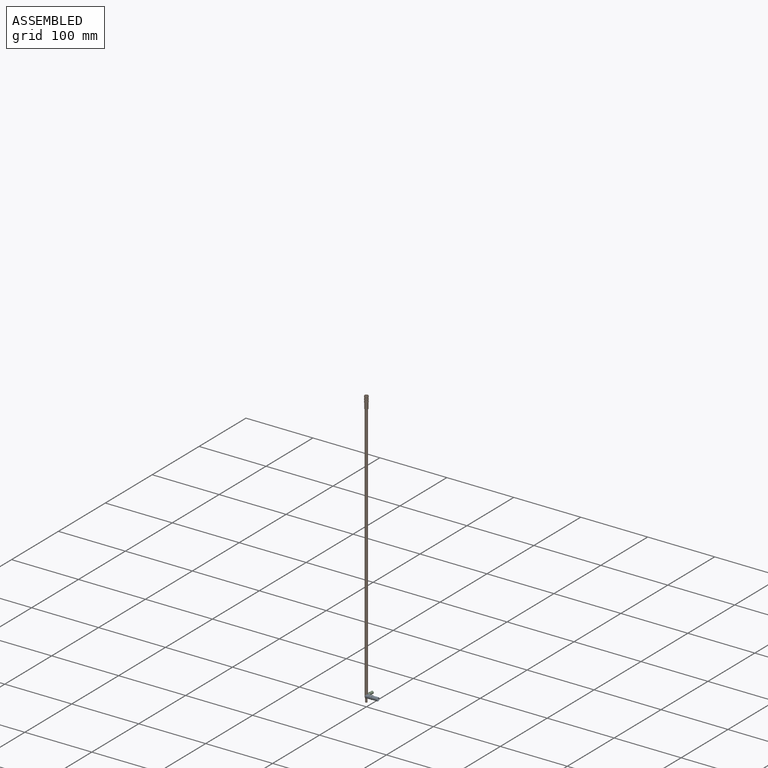
[diagram: assembled view]
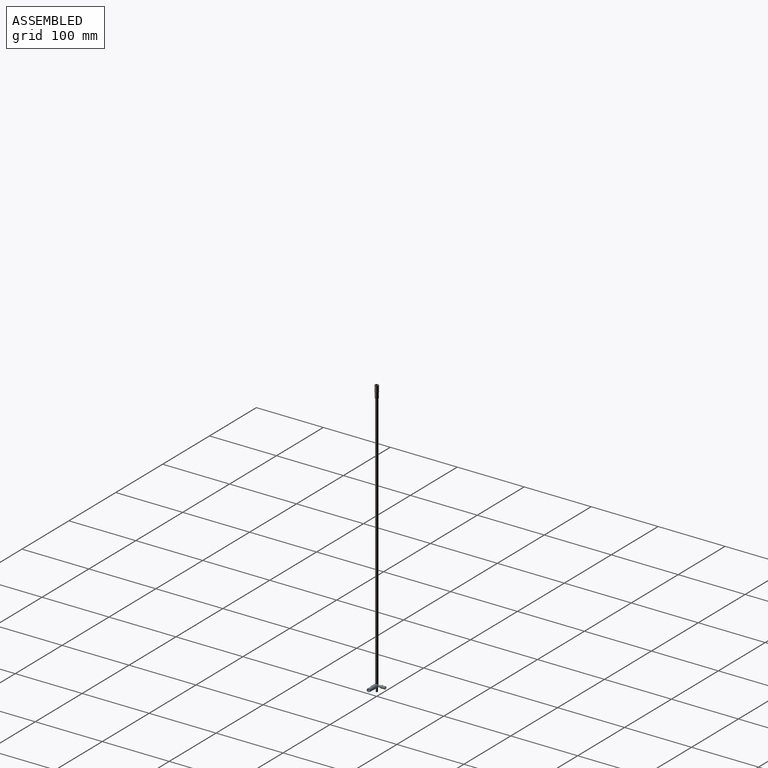
[diagram: assembled view, second angle]
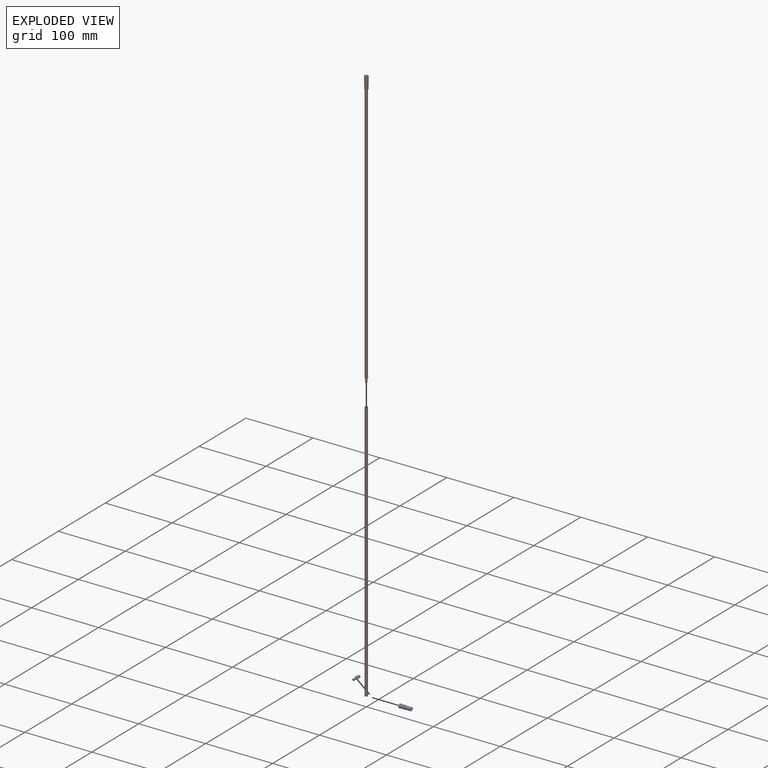
[diagram: exploded view]
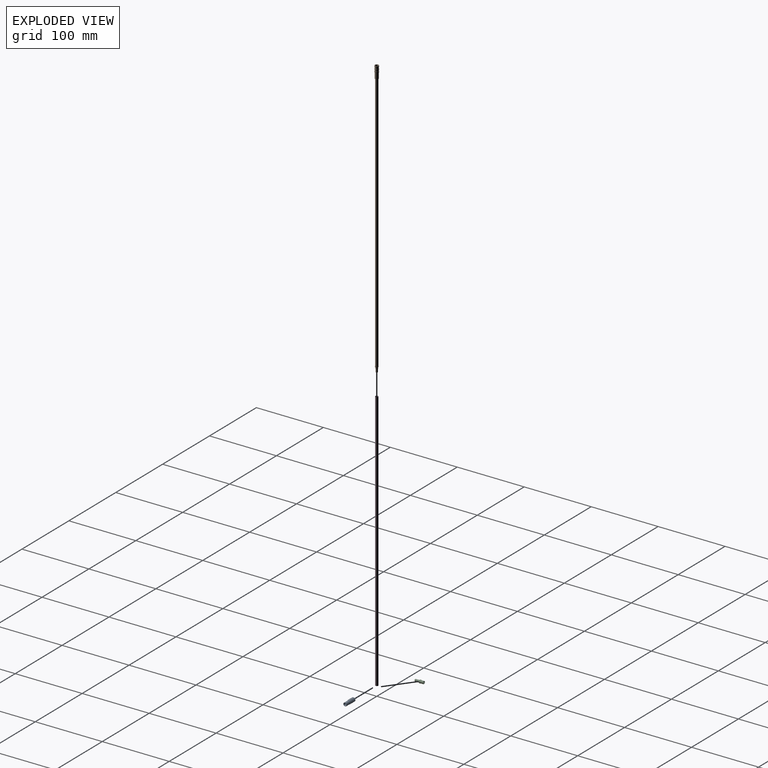
[diagram: exploded view, second angle]
FCSTD DOCUMENT  (FreeCAD 0.19R23074 (Git))
Label: StrawAssemblyTube39cm
License: All rights reserved
LicenseURL: http://en.wikipedia.org/wiki/All_rights_reserved
objects: PartDesign::CoordinateSystem×5, Sketcher::SketchObject×5, App::Part×4, App::Link×3, App::DocumentObjectGroup×2, PartDesign::Revolution×2, PartDesign::Pocket×2, Part::Chamfer×2, App::FeaturePython×1, PartDesign::Chamfer×1, Part::Cylinder×1, Part::Cut×1, PartDesign::Line×1, PartDesign::Body×1, Part::Extrusion×1
note: 27 computed .brp shape members not serialized (recipe doc carries the construction recipe); baked Part::Feature solids carry a one-line shape summary decoded from their .brp

FEATURE [PartDesign::CoordinateSystem] LCS_Origin
  AttacherType = Attacher::AttachEngine3D
  MapMode = 2
  Support = -> [X_Axis]
FEATURE [App::DocumentObjectGroup] Constraints
FEATURE [App::FeaturePython] Variables  # WARN: FeaturePython — macro-defined, semantics opaque (R4)
FEATURE [PartDesign::CoordinateSystem] LCS_0
  AttacherType = Attacher::AttachEngine3D
  MapMode = 2
  Support = -> [X_Axis001]
FEATURE [Sketcher::SketchObject] Sketch001
  MapMode = 5
  Support = -> [XY_Plane002]
  sketch-geometry (13):
    g0: LineSegment StartX=-1.39929 StartY=0 StartZ=0 EndX=0 EndY=0 EndZ=0
    g1: LineSegment StartX=0 StartY=0 StartZ=0 EndX=0 EndY=13 EndZ=0
    g2: LineSegment StartX=0 StartY=13 StartZ=0 EndX=-1.99 EndY=13 EndZ=0
    g3: LineSegment StartX=-1.99 StartY=13 StartZ=0 EndX=-1.99 EndY=8.5 EndZ=0
    g4: LineSegment StartX=-1.99 StartY=8.5 StartZ=0 EndX=-2.2 EndY=8.5 EndZ=0
    g5: LineSegment StartX=-2.2 StartY=8.5 StartZ=0 EndX=-2.2 EndY=7.5 EndZ=0
    g6: LineSegment StartX=-2.2 StartY=7.5 StartZ=0 EndX=-2.3 EndY=7.5 EndZ=0
    g7: LineSegment StartX=-2.3 StartY=7.5 StartZ=0 EndX=-2.3 EndY=7 EndZ=0
    g8: LineSegment StartX=-2.3 StartY=7 StartZ=0 EndX=-1.7 EndY=7 EndZ=0
    g9: LineSegment StartX=-1.7 StartY=7 StartZ=0 EndX=-1.7 EndY=4.76845 EndZ=0
    g10: LineSegment StartX=-1.39929 StartY=0 StartZ=0 EndX=-1.47 EndY=0.0707107 EndZ=0
    g11: LineSegment StartX=-1.47 StartY=0.0707107 StartZ=0 EndX=-1.47 EndY=4.57071 EndZ=0
    g12: ArcOfCircle CenterX=-1.67 CenterY=4.57071 CenterZ=0 NormalX=0 NormalY=0 NormalZ=1 AngleXU=0 Radius=0.2 StartAngle=-2.7e-15 EndAngle=1.72136
  constraints (38):
    c: PointOnObject(g0,g-1)
    c: Coincident(g0,g-1)
    c: Coincident(g0,g1)
    c: PointOnObject(g1,g-2)
    c: Coincident(g1,g2)
    c: Horizontal(g2)
    c: Coincident(g2,g3)
    c: Vertical(g3)
    c: Coincident(g3,g4)
    c: Coincident(g4,g5)
    c: Coincident(g5,g6)
    c: Horizontal(g6)
    c: Coincident(g6,g7)
    c: Vertical(g7)
    c: Coincident(g7,g8)
    c: Horizontal(g8)
    c: Coincident(g8,g9)
    c: Vertical(g9)
    c: Coincident(g10,g0)
    c: Vertical(g11)
    c: Coincident(g12,g9)
    c: Radius(g12) = 0.2
    c: Angle(g0,g10) = 2.35619
    c: Coincident(g10,g11)
    c: Distance(g10) = 0.1
    c: Distance(g10,g1) = 1.47
    c: Distance(g9,g1) = 1.7
    c: Distance(g7,g1) = 2.3
    c: Distance(g5,g1) = 2.2
    c: Vertical(g5)
    c: Distance(g3,g1) = 1.99
    c: Horizontal(g4)
    c: Distance(g3) = 4.5
    c: Distance(g11) = 4.5
    c: Distance(g5) = 1
    c: Distance(g7) = 0.5
    c: Distance(g1) = 13
    c: Tangent(g12,g11) = -1.5708
FEATURE [PartDesign::Revolution] Revolution
  Angle = 360
  Axis = (0,1,0)
  Base = (0,0,0)
  Profile = -> Sketch001
  ReferenceAxis = -> Sketch001 [V_Axis]
FEATURE [Sketcher::SketchObject] Sketch002
  MapMode = 5
  Placement = pos=(0,0,0) rot=(1,0,0;1.5708rad)
  Support = -> [XZ_Plane002]
  sketch-geometry (1):
    g0: Circle CenterX=0 CenterY=0 CenterZ=0 NormalX=0 NormalY=0 NormalZ=1 AngleXU=0 Radius=0.935
  constraints (2):
    c: Coincident(g0,g-1)
    c: Diameter(g0) = 1.87
FEATURE [PartDesign::Pocket] Pocket
  Length = 5
  Length2 = 100
  Profile = -> Sketch002
  Type = 1
FEATURE [PartDesign::Chamfer] Chamfer
  Angle = 45
  Base = -> Pocket [Edge2]
  BaseFeature = -> Pocket
  ChamferType = 0
  FlipDirection = false
  Size = 0.15
  Size2 = 1
  SupportTransform = false
FEATURE [Part::Cylinder] Cylinder
  Angle = 360
  AttacherType = Attacher::AttachEngine3D
  Height = 10
  Placement = pos=(0,9,-2e-15) rot=(-1,0,0;1.5708rad)
  Radius = 1.195
FEATURE [Part::Cut] Cut
  Base = -> Chamfer
  Tool = -> Cylinder
FEATURE [Sketcher::SketchObject] Sketch003
  MapMode = 5
  Placement = pos=(0,0,0) rot=(0.57735,0.57735,0.57735;2.0944rad)
  Support = -> [YZ_Plane005]
  sketch-geometry (1):
    g0: Circle CenterX=0 CenterY=0 CenterZ=0 NormalX=0 NormalY=0 NormalZ=1 AngleXU=0 Radius=2.2
  constraints (2):
    c: Coincident(g0,g-1)
    c: Radius(g0) = 2.2
FEATURE [PartDesign::CoordinateSystem] BigEndCapAxisBottom
  AttacherType = Attacher::AttachEngine3D
FEATURE [Sketcher::SketchObject] Sketch004
  sketch-geometry (15):
    g0: LineSegment StartX=0 StartY=0 StartZ=0 EndX=0 EndY=2.95 EndZ=0
    g1: LineSegment StartX=0 StartY=2.95 StartZ=0 EndX=2.00004 EndY=2.95 EndZ=0
    g2: LineSegment StartX=2.00004 StartY=2.95 StartZ=0 EndX=2.00004 EndY=2.6 EndZ=0
    g3: LineSegment StartX=2.00004 StartY=2.6 StartZ=0 EndX=4.00004 EndY=2.6 EndZ=0
    g4: LineSegment StartX=4.00004 StartY=2.6 StartZ=0 EndX=4.00004 EndY=2.95 EndZ=0
    g5: LineSegment StartX=4.00004 StartY=2.95 StartZ=0 EndX=5.50004 EndY=2.95 EndZ=0
    g6: LineSegment StartX=5.50004 StartY=2.95 StartZ=0 EndX=5.50004 EndY=2.6 EndZ=0
    g7: LineSegment StartX=5.50004 StartY=2.6 StartZ=0 EndX=7.50004 EndY=2.6 EndZ=0
    g8: LineSegment StartX=7.50004 StartY=2.6 StartZ=0 EndX=7.50004 EndY=2.95 EndZ=0
    g9: LineSegment StartX=7.50004 StartY=2.95 StartZ=0 EndX=9.00004 EndY=2.95 EndZ=0
    g10: LineSegment StartX=9.00004 StartY=2.95 StartZ=0 EndX=9.00004 EndY=2.59 EndZ=0
    g11: LineSegment StartX=9.00004 StartY=2.59 StartZ=0 EndX=13.5 EndY=2.59 EndZ=0
    g12: LineSegment StartX=13.5 StartY=2.59 StartZ=0 EndX=18 EndY=2.57 EndZ=0
    g13: LineSegment StartX=18 StartY=2.57 StartZ=0 EndX=18 EndY=0 EndZ=0
    g14: LineSegment StartX=18 StartY=0 StartZ=0 EndX=0 EndY=0 EndZ=0
  constraints (44):
    c: Coincident(g-1,g0)
    c: PointOnObject(g0,g-2)
    c: Coincident(g0,g1)
    c: Horizontal(g1)
    c: Coincident(g1,g2)
    c: Coincident(g2,g3)
    c: Coincident(g3,g4)
    c: Vertical(g4)
    c: Coincident(g4,g5)
    c: Horizontal(g5)
    c: Coincident(g5,g6)
    c: Vertical(g6)
    c: Coincident(g6,g7)
    c: Horizontal(g7)
    c: Coincident(g7,g8)
    c: Coincident(g8,g9)
    c: Coincident(g9,g10)
    c: Vertical(g10)
    c: Coincident(g10,g11)
    c: Horizontal(g11)
    c: Coincident(g11,g12)
    c: Coincident(g12,g13)
    c: PointOnObject(g13,g-1)
    c: Vertical(g13)
    c: Coincident(g13,g14)
    c: Coincident(g14,g0)
    c: Perpendicular(g3,g4)
    c: Vertical(g2)
    c: Vertical(g8)
    c: Horizontal(g9)
    c: Distance(g3) = 2
    c: Distance(g5) = 1.5
    c: Distance(g7) = 2
    c: Distance(g9) = 1.5
    c: Distance(g11) = 4.5
    c: Distance(g12) = 4.5
    c: Distance(g14) = 18
    c: Distance(g1,g14) = 2.95
    c: Distance(g3,g14) = 2.6
    c: Distance(g5,g14) = 2.95
    c: Distance(g6,g14) = 2.6
    c: Distance(g8,g14) = 2.95
    c: Distance(g10,g14) = 2.59
    c: Distance(g12,g14) = 2.57
FEATURE [PartDesign::Revolution] Revolution001
  Angle = 360
  Axis = (1,0,0)
  Base = (0,0,0)
  Profile = -> Sketch004
  ReferenceAxis = -> X_Axis004
FEATURE [PartDesign::Pocket] Pocket001
  BaseFeature = -> Revolution001
  Length = 5
  Length2 = 100
  Profile = -> Sketch003
  Reversed = true
  Type = 1
FEATURE [Part::Chamfer] Chamfer002
  Base = -> Pocket001
  Edges = 1 edges r=0.15: [Edge8]
FEATURE [PartDesign::Line] HoleAxis_1
  AttacherType = Attacher::AttachEngineLine
  Length = 6.1999
  MapMode = 19
  Placement = pos=(18,-4e-15,4e-15) rot=(-0.57735,-0.57735,0.57735;2.0944rad)
  ResizeMode = 1
  Support = -> [Chamfer002]
FEATURE [Part::Chamfer] Chamfer001  label="SmallEndCapIn"
  Base = -> Cut
  Edges = 1 edges r=0.25: [Edge8]
FEATURE [PartDesign::Body] Body
  Origin = -> Origin003
FEATURE [PartDesign::CoordinateSystem] LCS_001
  AttacherType = Attacher::AttachEngine3D
  MapMode = 2
  Support = -> [X_Axis002]
FEATURE [App::Part] SmallEndCap
  Group = -> [LCS_001,Chamfer,Cut,Revolution,Cylinder,Pocket,Sketch001,Sketch002,Chamfer001,Body]
  Origin = -> Origin002
FEATURE [PartDesign::CoordinateSystem] LCS_002
  AttacherType = Attacher::AttachEngine3D
  MapMode = 2
  Support = -> [X_Axis005]
FEATURE [App::Part] BigEndCap
  Group = -> [LCS_002,Pocket001,Sketch004,Revolution001,Sketch003,Chamfer002,HoleAxis_1,BigEndCapAxisBottom]
  Origin = -> Origin004
FEATURE [Sketcher::SketchObject] Sketch
  sketch-geometry (2):
    g0: Circle CenterX=0 CenterY=0 CenterZ=0 NormalX=0 NormalY=0 NormalZ=1 AngleXU=0 Radius=2.015
    g1: Circle CenterX=0 CenterY=0 CenterZ=0 NormalX=0 NormalY=0 NormalZ=1 AngleXU=0 Radius=2.075
  constraints (4):
    c: Coincident(g0,g-1)
    c: Coincident(g1,g0)
    c: Diameter(g0) = 4.03
    c: Diameter(g1) = 4.15
FEATURE [Part::Extrusion] Extrude  label="StrawTubeModel"
  Base = -> Sketch
  Dir = (0,0,1)
  DirMode = 2
  FaceMakerClass = Part::FaceMakerBullseye
  LengthFwd = 390
  LengthRev = 0
  Solid = true
  Symmetric = false
FEATURE [App::Part] StrawTube
  Group = -> [LCS_0,Sketch,Extrude]
  Origin = -> Origin001
FEATURE [App::DocumentObjectGroup] Parts
  Group = -> [BigEndCap,StrawTube,X_Axis004,YZ_Plane005,SmallEndCap]
FEATURE [App::Link] StrawTube002  label="Straw"
  AssemblyType = Asm4EE
  AttachedBy = #LCS_0
  AttachedTo = Parent Assembly#LCS_Origin
  LinkedObject = -> StrawTube
  expr: Placement = LCS_Origin.Placement * AttachmentOffset * LCS_0.Placement ^ -1
FEATURE [App::Link] SmallEndCap001
  AssemblyType = Asm4EE
  AttachedBy = #LCS_001
  AttachedTo = StrawTube002#LCS_0
  AttachmentOffset = pos=(0,0,-8.5) rot=(1,0,0;1.5708rad)
  LinkPlacement = pos=(0,0,-8.5) rot=(1,0,0;1.5708rad)
  LinkedObject = -> SmallEndCap
  Placement = pos=(0,0,-8.5) rot=(1,0,0;1.5708rad)
  expr: Placement = StrawTube002.Placement * LCS_0.Placement * AttachmentOffset * LCS_001.Placement ^ -1
FEATURE [App::Link] BigEndCap001
  AssemblyType = Asm4EE
  AttachedBy = #LCS_002
  AttachedTo = StrawTube002#LCS_0
  AttachmentOffset = pos=(0,0,405.5) rot=(0,-1,0;4.71239rad)
  LinkPlacement = pos=(0,0,405.5) rot=(0,-1,0;4.71239rad)
  LinkedObject = -> BigEndCap
  Placement = pos=(0,0,405.5) rot=(0,-1,0;4.71239rad)
  expr: Placement = StrawTube002.Placement * LCS_0.Placement * AttachmentOffset * LCS_002.Placement ^ -1
FEATURE [App::Part] Model
  Configuration = 0
  Group = -> [LCS_Origin,Constraints,Variables,StrawTube002,SmallEndCap001,BigEndCap001]
  Origin = -> Origin
  Type = Assembly4 Model
